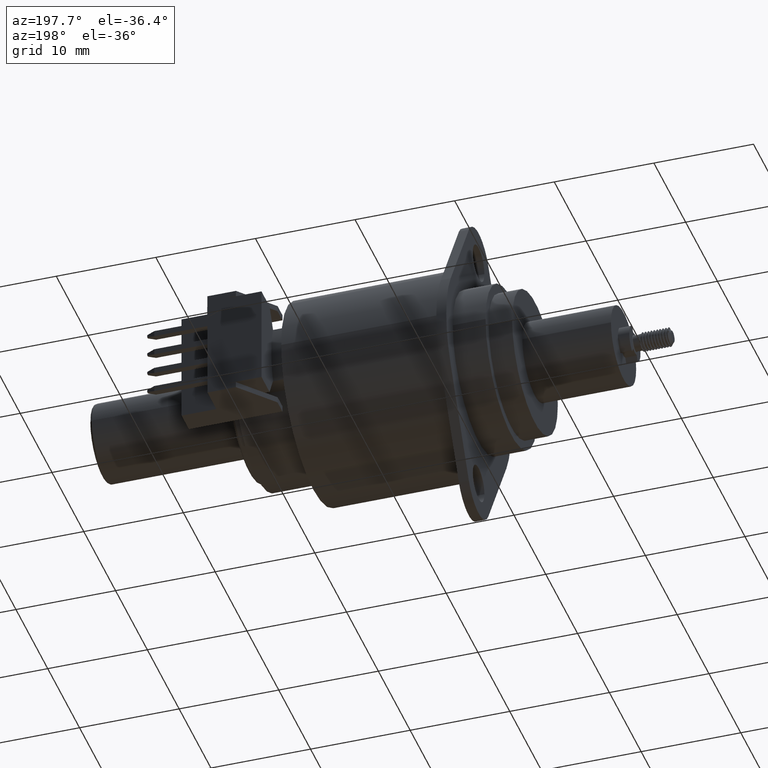
[diagram: clean part render]
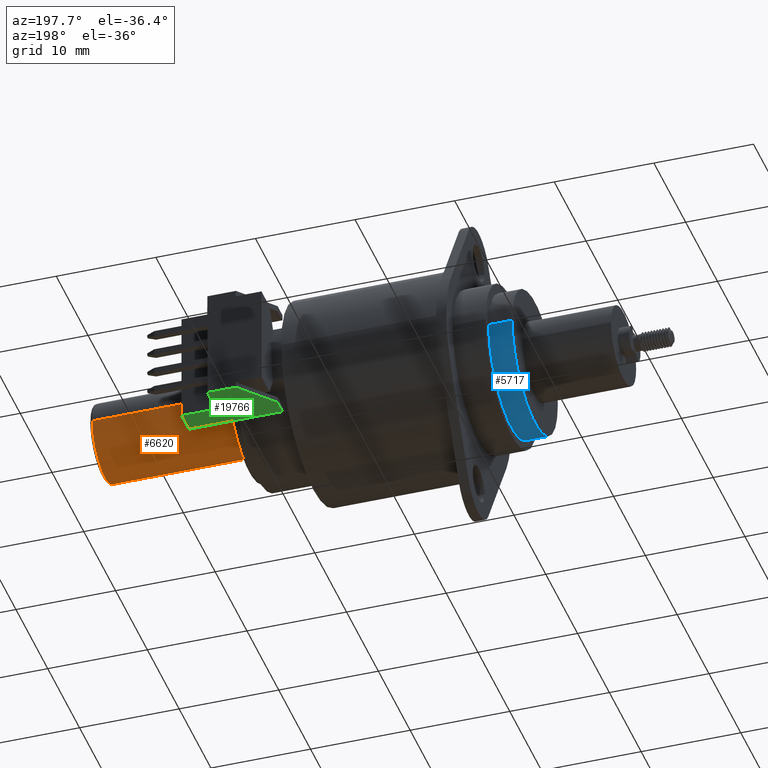
[diagram: same view with three faces highlighted in distinct colors, each labeled with its STEP entity id]
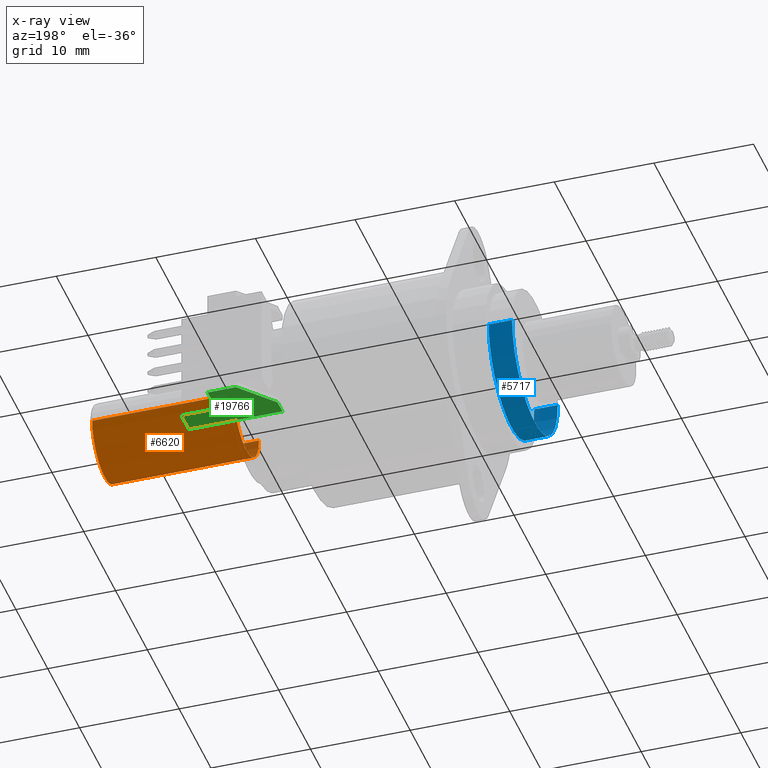
[diagram: x-ray of the same camera — body ghosted, the three highlighted faces saturated]
A machine part, auxiliary view with three faces highlighted in distinct colors.
The next image is the same camera in x-ray (body ghosted, the three faces saturated) — at least one of them is partly hidden behind the body in this view.
Their STEP definitions:

[orange] entity #6620 — the highlighted cylindrical surface (partial cylindrical patch) has radius 3.937 mm, axis along (-1, 0, 0).
#6243=CARTESIAN_POINT('',(-5.7E-1,0.E0,0.E0));
#6244=DIRECTION('',(1.E0,0.E0,0.E0));
#6245=DIRECTION('',(0.E0,-1.E0,-2.035153227912E-13));
#6246=AXIS2_PLACEMENT_3D('',#6243,#6244,#6245);
#6248=CARTESIAN_POINT('',(-5.7E-1,0.E0,0.E0));
#6249=DIRECTION('',(1.E0,0.E0,0.E0));
#6250=DIRECTION('',(0.E0,9.998839784209E-1,-1.523252104143E-2));
#6251=AXIS2_PLACEMENT_3D('',#6248,#6249,#6250);
#6283=DIRECTION('',(1.E0,0.E0,7.484809058507E-14));
#6284=VECTOR('',#6283,5.6E-1);
#6285=CARTESIAN_POINT('',(-5.7E-1,1.55E-1,0.E0));
#6286=LINE('',#6285,#6284);
#6287=DIRECTION('',(1.E0,0.E0,-7.490946417233E-14));
#6288=VECTOR('',#6287,5.6E-1);
#6289=CARTESIAN_POINT('',(-5.7E-1,-1.55E-1,-1.583412861994E-14));
#6290=LINE('',#6289,#6288);
#6291=CARTESIAN_POINT('',(-1.E-2,0.E0,0.E0));
#6292=DIRECTION('',(-1.E0,0.E0,0.E0));
#6293=DIRECTION('',(0.E0,1.E0,0.E0));
#6294=AXIS2_PLACEMENT_3D('',#6291,#6292,#6293);
#6296=CARTESIAN_POINT('',(-1.E-2,0.E0,0.E0));
#6297=DIRECTION('',(-1.E0,0.E0,0.E0));
#6298=DIRECTION('',(0.E0,-9.999368260510E-1,-1.124028056233E-2));
#6299=AXIS2_PLACEMENT_3D('',#6296,#6297,#6298);
#6379=CARTESIAN_POINT('',(-5.7E-1,-1.55E-1,0.E0));
#6380=VERTEX_POINT('',#6379);
#6381=CARTESIAN_POINT('',(-5.7E-1,1.549820166552E-1,-2.361040761422E-3));
#6382=VERTEX_POINT('',#6381);
#6383=CARTESIAN_POINT('',(-5.7E-1,1.55E-1,0.E0));
#6384=VERTEX_POINT('',#6383);
#6387=CARTESIAN_POINT('',(-1.E-2,1.55E-1,4.198611284395E-14));
#6388=VERTEX_POINT('',#6387);
#6391=CARTESIAN_POINT('',(-1.E-2,-1.55E-1,-3.154487503264E-14));
#6392=VERTEX_POINT('',#6391);
#6393=CARTESIAN_POINT('',(-1.E-2,-1.549902080379E-1,-1.742243487161E-3));
#6394=VERTEX_POINT('',#6393);
#6605=CARTESIAN_POINT('',(3.91E-2,0.E0,0.E0));
#6606=DIRECTION('',(-1.E0,0.E0,0.E0));
#6607=DIRECTION('',(0.E0,1.E0,0.E0));
#6608=AXIS2_PLACEMENT_3D('',#6605,#6606,#6607);
#6609=CYLINDRICAL_SURFACE('',#6608,1.55E-1);
#6611=ORIENTED_EDGE('',*,*,#6610,.F.);
#6613=ORIENTED_EDGE('',*,*,#6612,.F.);
#6614=ORIENTED_EDGE('',*,*,#6592,.F.);
#6615=ORIENTED_EDGE('',*,*,#6563,.F.);
#6616=ORIENTED_EDGE('',*,*,#6561,.F.);
#6617=ORIENTED_EDGE('',*,*,#6598,.T.);
#6618=EDGE_LOOP('',(#6611,#6613,#6614,#6615,#6616,#6617));
#6619=FACE_OUTER_BOUND('',#6618,.F.);
#6620=ADVANCED_FACE('',(#6619),#6609,.T.);
#6247=CIRCLE('',#6246,1.55E-1);
#6252=CIRCLE('',#6251,1.55E-1);
#6295=CIRCLE('',#6294,1.55E-1);
#6300=CIRCLE('',#6299,1.55E-1);
#6561=EDGE_CURVE('',#6380,#6382,#6247,.T.);
#6563=EDGE_CURVE('',#6382,#6384,#6252,.T.);
#6592=EDGE_CURVE('',#6384,#6388,#6286,.T.);
#6598=EDGE_CURVE('',#6380,#6392,#6290,.T.);
#6610=EDGE_CURVE('',#6394,#6392,#6300,.T.);
#6612=EDGE_CURVE('',#6388,#6394,#6295,.T.);

[blue] entity #5717 — the highlighted cylindrical surface (partial cylindrical patch) has radius 7.1755 mm, axis along (-1, 0, 0).
#5249=CARTESIAN_POINT('',(-2.23E-1,0.E0,0.E0));
#5250=DIRECTION('',(1.E0,0.E0,0.E0));
#5251=DIRECTION('',(0.E0,-1.E0,0.E0));
#5252=AXIS2_PLACEMENT_3D('',#5249,#5250,#5251);
#5269=DIRECTION('',(1.E0,0.E0,0.E0));
#5270=VECTOR('',#5269,9.3E-2);
#5271=CARTESIAN_POINT('',(-2.23E-1,-2.825E-1,0.E0));
#5272=LINE('',#5271,#5270);
#5273=DIRECTION('',(1.E0,0.E0,0.E0));
#5274=VECTOR('',#5273,9.3E-2);
#5275=CARTESIAN_POINT('',(-2.23E-1,2.825E-1,0.E0));
#5276=LINE('',#5275,#5274);
#5292=CARTESIAN_POINT('',(-1.3E-1,0.E0,0.E0));
#5293=DIRECTION('',(-1.E0,0.E0,0.E0));
#5294=DIRECTION('',(0.E0,1.E0,0.E0));
#5295=AXIS2_PLACEMENT_3D('',#5292,#5293,#5294);
#5569=CARTESIAN_POINT('',(-2.23E-1,-2.825E-1,0.E0));
#5570=CARTESIAN_POINT('',(-2.23E-1,2.825E-1,0.E0));
#5571=VERTEX_POINT('',#5569);
#5572=VERTEX_POINT('',#5570);
#5573=CARTESIAN_POINT('',(-1.3E-1,2.825E-1,0.E0));
#5574=VERTEX_POINT('',#5573);
#5575=CARTESIAN_POINT('',(-1.3E-1,-2.825E-1,0.E0));
#5576=VERTEX_POINT('',#5575);
#5703=CARTESIAN_POINT('',(2.865E-2,0.E0,0.E0));
#5704=DIRECTION('',(-1.E0,0.E0,0.E0));
#5705=DIRECTION('',(0.E0,1.E0,0.E0));
#5706=AXIS2_PLACEMENT_3D('',#5703,#5704,#5705);
#5707=CYLINDRICAL_SURFACE('',#5706,2.825E-1);
#5709=ORIENTED_EDGE('',*,*,#5708,.F.);
#5710=ORIENTED_EDGE('',*,*,#5692,.F.);
#5712=ORIENTED_EDGE('',*,*,#5711,.T.);
#5714=ORIENTED_EDGE('',*,*,#5713,.F.);
#5715=EDGE_LOOP('',(#5709,#5710,#5712,#5714));
#5716=FACE_OUTER_BOUND('',#5715,.F.);
#5717=ADVANCED_FACE('',(#5716),#5707,.T.);
#5253=CIRCLE('',#5252,2.825E-1);
#5296=CIRCLE('',#5295,2.825E-1);
#5692=EDGE_CURVE('',#5571,#5572,#5253,.T.);
#5708=EDGE_CURVE('',#5572,#5574,#5276,.T.);
#5711=EDGE_CURVE('',#5571,#5576,#5272,.T.);
#5713=EDGE_CURVE('',#5574,#5576,#5296,.T.);

[green] entity #19766 — the highlighted planar face has unit normal (0, 0, -1).
#18849=DIRECTION('',(0.E0,0.E0,-1.E0));
#18850=VECTOR('',#18849,3.7E-1);
#18851=CARTESIAN_POINT('',(2.251E-1,2.694902595642E-1,1.8E-1));
#18852=LINE('',#18851,#18850);
#18942=DIRECTION('',(0.E0,-1.E0,0.E0));
#18943=VECTOR('',#18942,1.1E-1);
#18944=CARTESIAN_POINT('',(2.251E-1,4.7E-1,4.26E-2));
#18945=LINE('',#18944,#18943);
#19090=DIRECTION('',(0.E0,0.E0,-1.E0));
#19091=VECTOR('',#19090,1.374E-1);
#19092=CARTESIAN_POINT('',(2.251E-1,3.6E-1,1.8E-1));
#19093=LINE('',#19092,#19091);
#19094=DIRECTION('',(0.E0,0.E0,-1.E0));
#19095=VECTOR('',#19094,1.126E-1);
#19096=CARTESIAN_POINT('',(2.251E-1,4.7E-1,4.26E-2));
#19097=LINE('',#19096,#19095);
#19098=DIRECTION('',(0.E0,-7.592566023653E-1,-6.507913734560E-1));
#19099=VECTOR('',#19098,1.843908891459E-1);
#19100=CARTESIAN_POINT('',(2.251E-1,4.7E-1,-7.E-2));
#19101=LINE('',#19100,#19099);
#19102=DIRECTION('',(0.E0,-1.E0,0.E0));
#19103=VECTOR('',#19102,6.050974043580E-2);
#19104=CARTESIAN_POINT('',(2.251E-1,3.3E-1,-1.9E-1));
#19105=LINE('',#19104,#19103);
#19114=DIRECTION('',(0.E0,-1.E0,0.E0));
#19115=VECTOR('',#19114,9.050974043580E-2);
#19116=CARTESIAN_POINT('',(2.251E-1,3.6E-1,1.8E-1));
#19117=LINE('',#19116,#19115);
#19266=CARTESIAN_POINT('',(2.251E-1,2.694902595642E-1,1.8E-1));
#19267=VERTEX_POINT('',#19266);
#19268=CARTESIAN_POINT('',(2.251E-1,2.694902595642E-1,-1.9E-1));
#19269=VERTEX_POINT('',#19268);
#19310=CARTESIAN_POINT('',(2.251E-1,4.7E-1,4.26E-2));
#19311=VERTEX_POINT('',#19310);
#19312=CARTESIAN_POINT('',(2.251E-1,3.6E-1,4.26E-2));
#19313=VERTEX_POINT('',#19312);
#19336=CARTESIAN_POINT('',(2.251E-1,3.3E-1,-1.9E-1));
#19337=VERTEX_POINT('',#19336);
#19338=CARTESIAN_POINT('',(2.251E-1,4.7E-1,-7.E-2));
#19339=VERTEX_POINT('',#19338);
#19342=CARTESIAN_POINT('',(2.251E-1,3.6E-1,1.8E-1));
#19343=VERTEX_POINT('',#19342);
#19750=CARTESIAN_POINT('',(2.251E-1,2.694902595642E-1,3.E-2));
#19751=DIRECTION('',(1.E0,0.E0,0.E0));
#19752=DIRECTION('',(0.E0,1.E0,0.E0));
#19753=AXIS2_PLACEMENT_3D('',#19750,#19751,#19752);
#19754=PLANE('',#19753);
#19755=ORIENTED_EDGE('',*,*,#19404,.F.);
#19757=ORIENTED_EDGE('',*,*,#19756,.F.);
#19759=ORIENTED_EDGE('',*,*,#19758,.T.);
#19760=ORIENTED_EDGE('',*,*,#19511,.F.);
#19761=ORIENTED_EDGE('',*,*,#19547,.T.);
#19762=ORIENTED_EDGE('',*,*,#19744,.T.);
#19763=ORIENTED_EDGE('',*,*,#19732,.T.);
#19764=EDGE_LOOP('',(#19755,#19757,#19759,#19760,#19761,#19762,#19763));
#19765=FACE_OUTER_BOUND('',#19764,.F.);
#19766=ADVANCED_FACE('',(#19765),#19754,.T.);
#19404=EDGE_CURVE('',#19267,#19269,#18852,.T.);
#19511=EDGE_CURVE('',#19311,#19313,#18945,.T.);
#19547=EDGE_CURVE('',#19311,#19339,#19097,.T.);
#19732=EDGE_CURVE('',#19337,#19269,#19105,.T.);
#19744=EDGE_CURVE('',#19339,#19337,#19101,.T.);
#19756=EDGE_CURVE('',#19343,#19267,#19117,.T.);
#19758=EDGE_CURVE('',#19343,#19313,#19093,.T.);